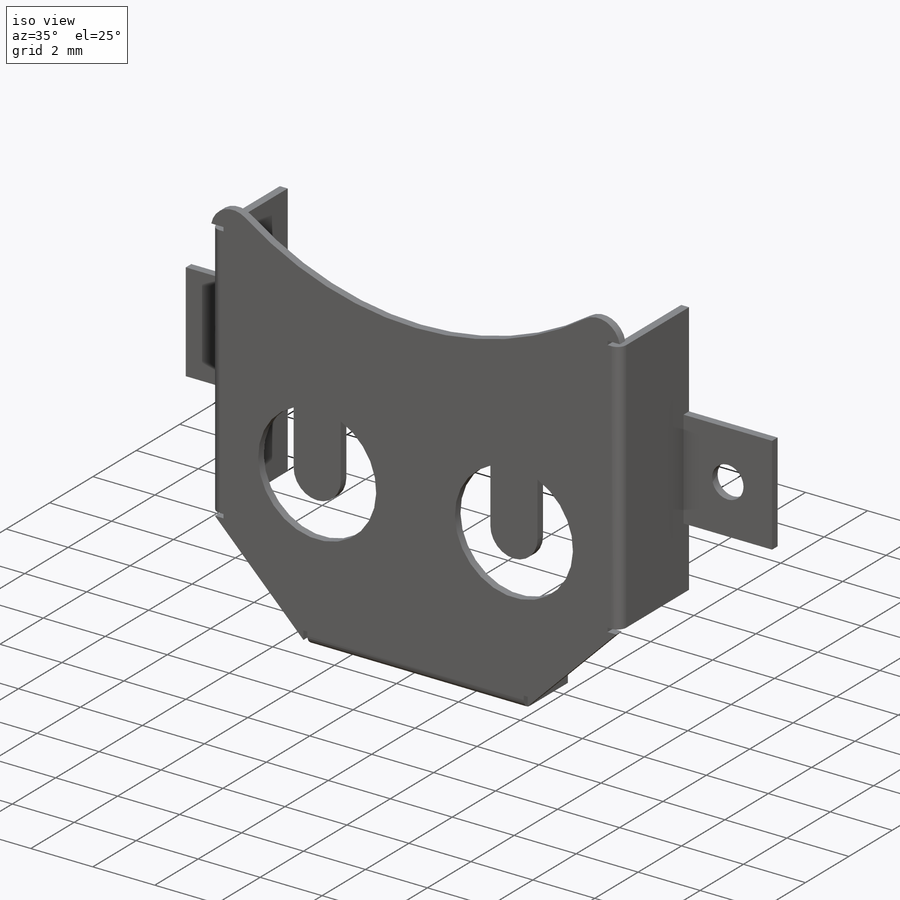
[diagram: iso view]
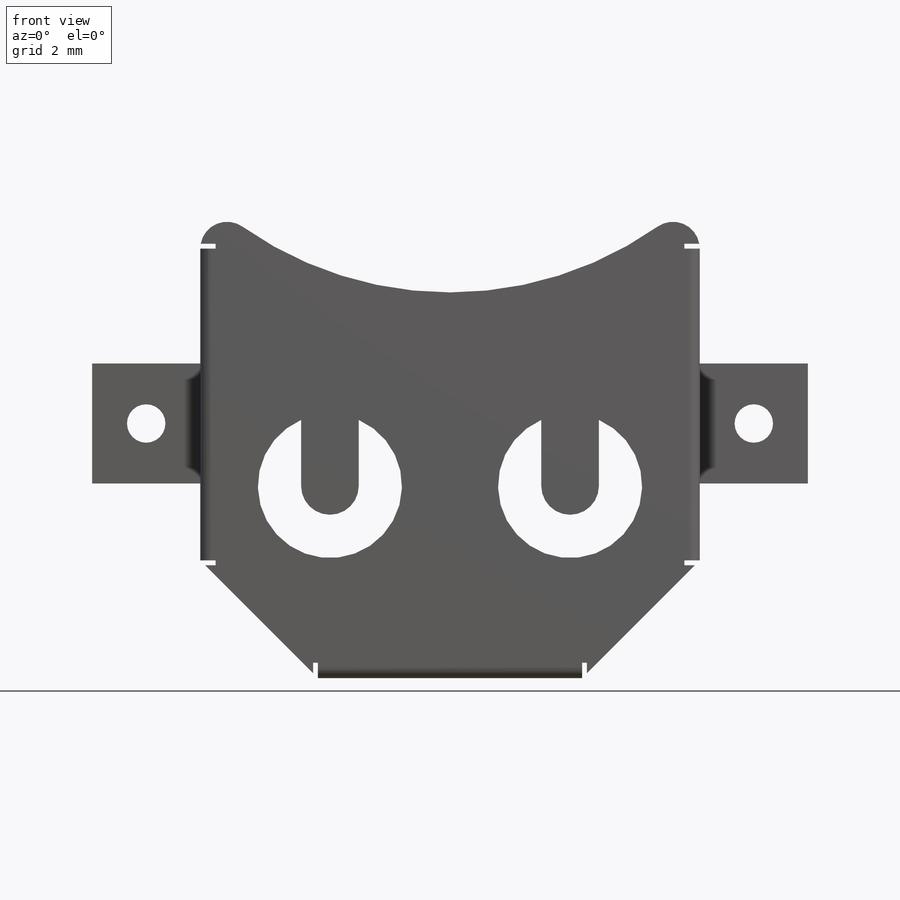
[diagram: front view]
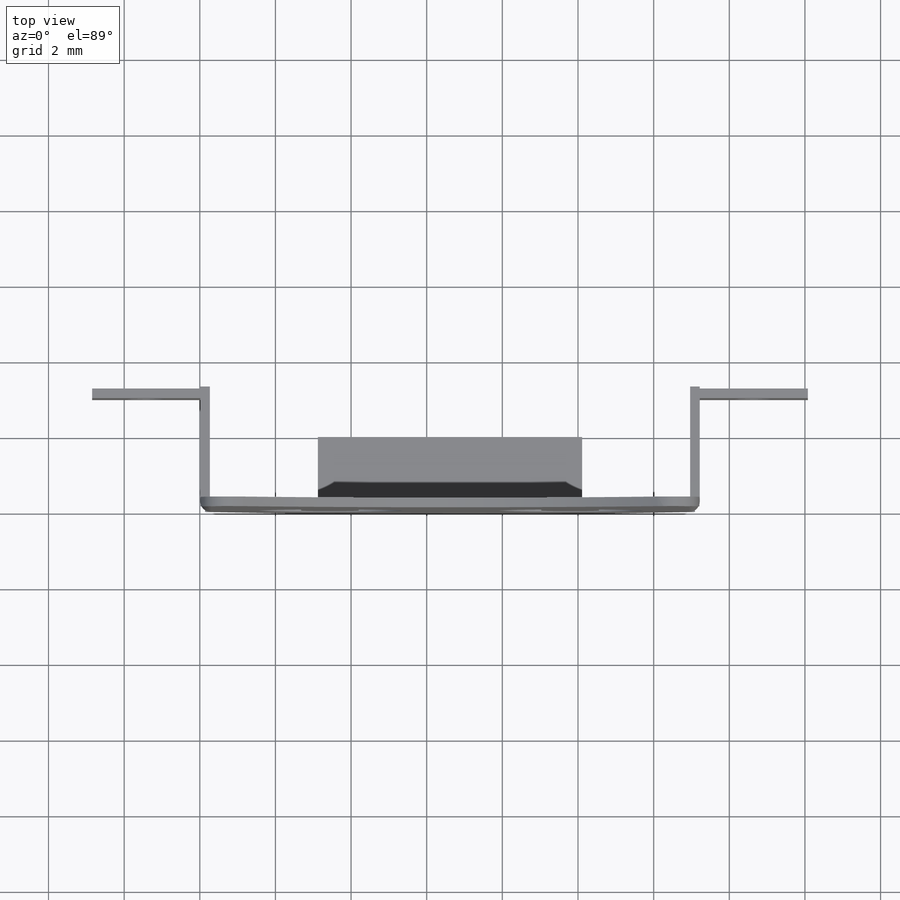
[diagram: top view]
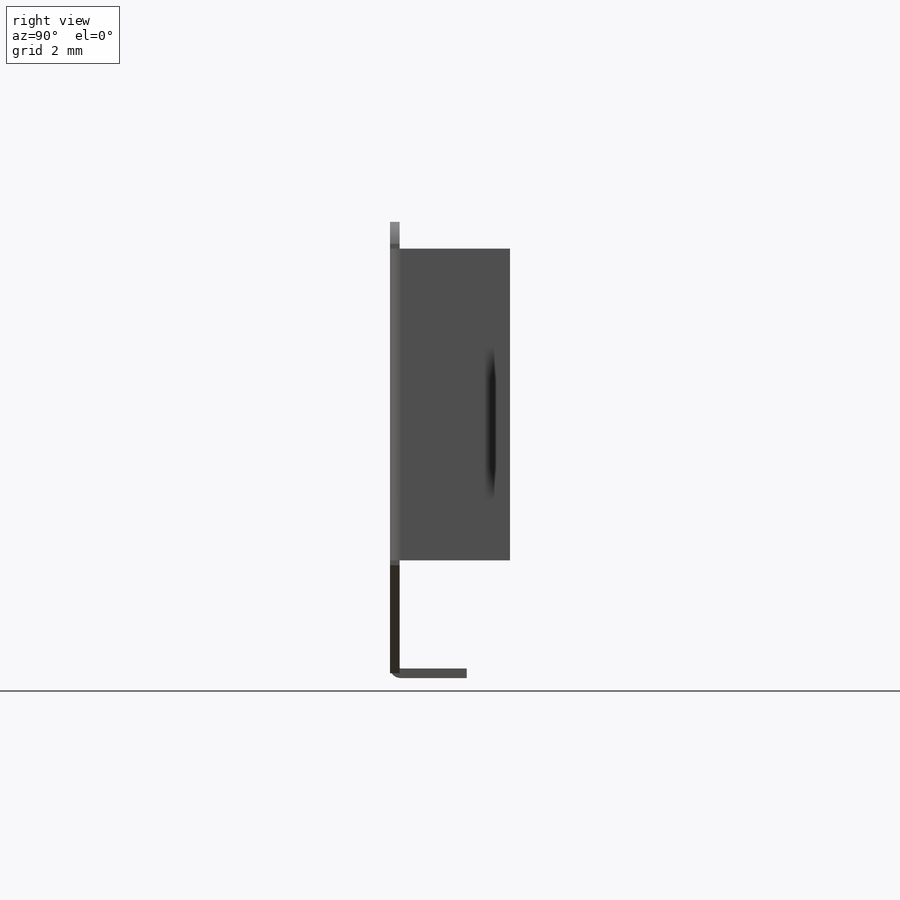
[diagram: right view]
SOLIDWORKS PART (.sldprt)
format: sldprt  version: not decoded by parser v0  size: 396,800 bytes
history: native  units: mm
features: sketch x21, sheet_metal_op x9, cut_extrude x2, material x1, plane x1 + 6 further entries (+13 scaffold rows collapsed; 6 parser-record rows omitted)
feature tree (59):
  scaffold x13  (default folders/planes/origin — collapsed)
  material  "Material <not specified>"
  sketch  "Sketch1"  dims[c1.D6=19.05mm c1.D8=9.525mm c1.D1=13.208mm c1.D2=6.985mm c1.D3=6.985mm c2.D3=~56.960139deg c3.D3=~785.398163mm c3.D4=~785.398163mm c3.D5=12.065mm c3.D7=~7.656861mm c3.D8=13.208mm c3.D1=0.0254mm c3.D2=0.5 c4.D3=0.0deg c4.D6=~28.64789deg]
  sheet_metal_op  "Base-Flange1"
  sketch  "Sketch9"  dims[c1.D1=0.0254mm c1.D4=~1570.796327mm c1.D5=1.0 c1.D8=~0.007277deg c1.D9=~0.007277deg c2.D1=0.0254mm c2.D2=~28.64789deg c2.D3=0.0deg c2.D6=10.0mm c2.D7=2.032mm c2.Edge-Flange2=0.0]
  sketch  "Sketch14"
  sketch  "Sketch15"
  sheet_metal_op  "EdgeBend2"
  sheet_metal_op  "EdgeBend3"
  plane  "Plane2"  Offset=6.731mm
  sketch  "Sketch17"  dims[c1.D1=18.923mm c1.D2=2.8575mm c1.D3=2.8575mm c2.D1=3.175mm c2.D5=0.254mm c2.D6=1.0mm c2.D7=1.27mm]
  sketch  "Sketch20"  dims[c1.D2=3.81mm c1.D6=3.81mm c1.D7=0.762mm c1.D1=6.985mm c1.D3=3.175mm c1.D4=2.54mm c1.D5=1.524mm c2.D6=4.445mm]
  cut_extrude  "Cut-Extrude1"  [1 undecoded]
  sketch  "Sketch23"  dims[D1=1.016mm]
  cut_extrude  "Cut-Extrude2"  [1 undecoded]
  sketch  "Bend-Lines1"
  sketch  "Bounding-Box1"
  sheet_metal_op  "Sheet-Metal1"
  "Flat-Pattern1"
  sketch  "Bend-Lines2"
  sketch  "Bounding-Box2"
  parser-record x6  (decoder bookkeeping rows leaked as tree rows — omitted from the tree; the rows remain in map.json)
  sheet_metal_op  "Sheet-Metal2"
  "Flat-Pattern1"
  sketch  "Bend-Lines2"
  sketch  "Bounding-Box2"
  sheet_metal_op  "Sheet-Metal3"
  "Flat-Pattern1"
  sketch  "Bend-Lines2"
  sketch  "Bounding-Box2"
  sheet_metal_op  "Sheet-Metal4"
  "Flat-Pattern1"
  sketch  "Bend-Lines3"
  sketch  "Bounding-Box3"
  sheet_metal_op  "Sheet-Metal6"
  "Flat-Pattern1"
  sketch  "Bend-Lines3"
  sketch  "Bounding-Box3"
  sheet_metal_op  "Sheet-Metal7"
  "Flat-Pattern1"
  sketch  "Bend-Lines3"
  sketch  "Bounding-Box3"
decode coverage: 5 of 32 modeling features carry decoded parameters; 6 rows unclassified (native names shown)
note: ~ marks probable driven/reference dimensions
note: 2 parameter values undecoded
note: suppression state not decoded; provenance and decode notes live in map.json
